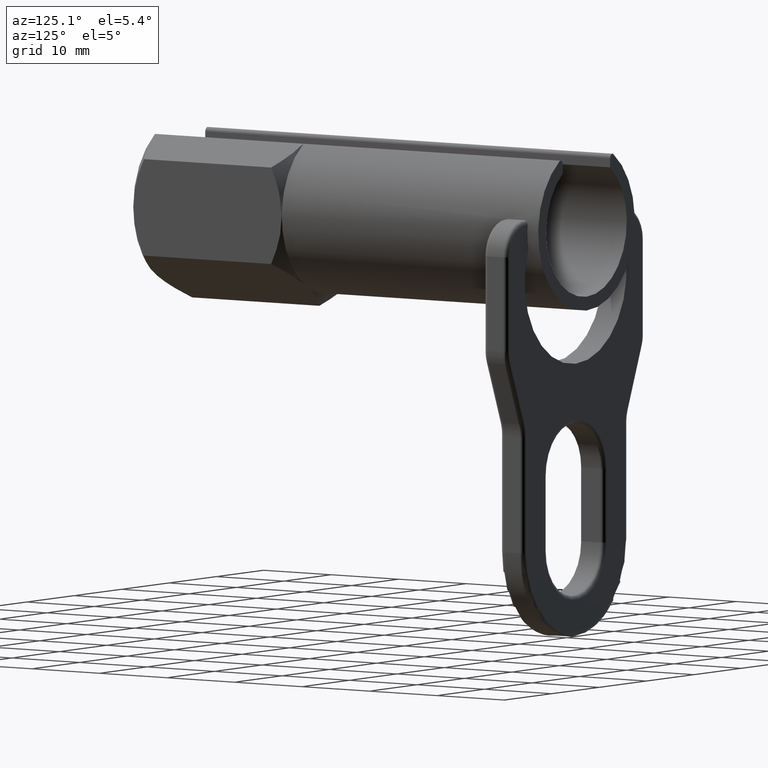
[diagram: clean part render]
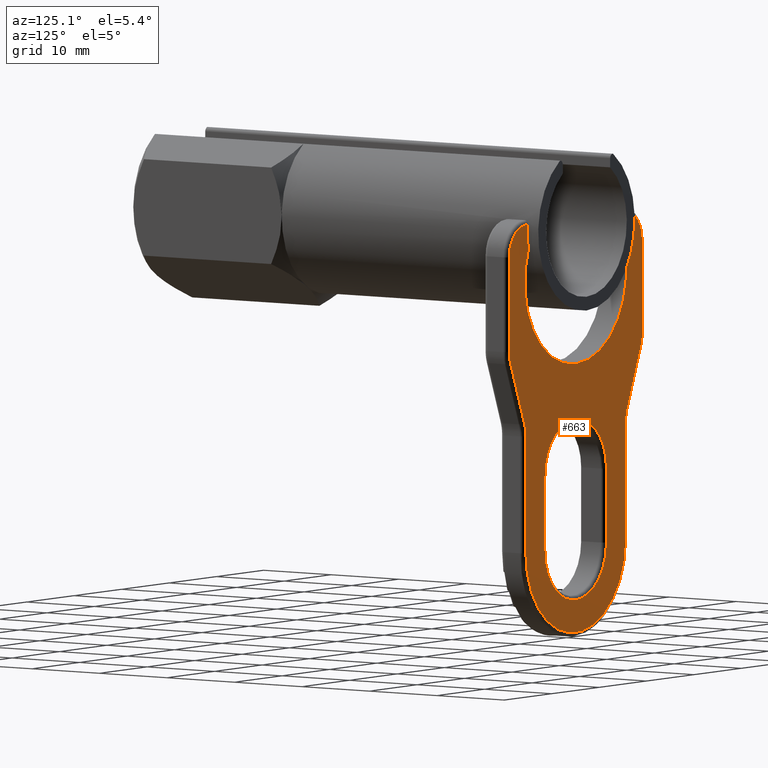
[diagram: same view with one face highlighted and labeled with its STEP entity id]
A machine part, auxiliary view. The second image highlights one B-rep face of the part: STEP entity #663.
In plain terms, the highlighted planar face has unit normal (0, 1, 0).
Its self-contained STEP definition (entity closure, byte-faithful):
#549 = EDGE_CURVE ( 'NONE', #550, #553, #1815, .T. ) ;
#550 = VERTEX_POINT ( 'NONE', #1810 ) ;
#553 = VERTEX_POINT ( 'NONE', #1804 ) ;
#561 = EDGE_CURVE ( 'NONE', #562, #563, #1844, .T. ) ;
#562 = VERTEX_POINT ( 'NONE', #1839 ) ;
#563 = VERTEX_POINT ( 'NONE', #1838 ) ;
#568 = VERTEX_POINT ( 'NONE', #1835 ) ;
#570 = EDGE_CURVE ( 'NONE', #577, #568, #1892, .T. ) ;
#577 = VERTEX_POINT ( 'NONE', #1878 ) ;
#620 = VERTEX_POINT ( 'NONE', #1968 ) ;
#624 = EDGE_CURVE ( 'NONE', #620, #627, #1960, .T. ) ;
#627 = VERTEX_POINT ( 'NONE', #2014 ) ;
#663 = ADVANCED_FACE ( 'NONE', ( #2048, #2047 ), #2110, .T. ) ;
#664 = ORIENTED_EDGE ( 'NONE', *, *, #665, .T. ) ;
#665 = EDGE_CURVE ( 'NONE', #666, #667, #2105, .T. ) ;
#666 = VERTEX_POINT ( 'NONE', #2100 ) ;
#667 = VERTEX_POINT ( 'NONE', #2099 ) ;
#668 = ORIENTED_EDGE ( 'NONE', *, *, #669, .T. ) ;
#669 = EDGE_CURVE ( 'NONE', #667, #670, #2098, .T. ) ;
#670 = VERTEX_POINT ( 'NONE', #2094 ) ;
#671 = ORIENTED_EDGE ( 'NONE', *, *, #672, .T. ) ;
#672 = EDGE_CURVE ( 'NONE', #670, #562, #2093, .T. ) ;
#673 = ORIENTED_EDGE ( 'NONE', *, *, #561, .T. ) ;
#674 = ORIENTED_EDGE ( 'NONE', *, *, #675, .T. ) ;
#675 = EDGE_CURVE ( 'NONE', #563, #666, #2088, .T. ) ;
#676 = EDGE_LOOP ( 'NONE', ( #717, #720, #779, #782, #793, #705, #708, #711, #714, #785, #788, #791, #772, #775, #777, #778, #732, #733 ) ) ;
#703 = EDGE_CURVE ( 'NONE', #792, #704, #2164, .T. ) ;
#704 = VERTEX_POINT ( 'NONE', #2159 ) ;
#705 = ORIENTED_EDGE ( 'NONE', *, *, #706, .T. ) ;
#706 = EDGE_CURVE ( 'NONE', #704, #707, #2158, .T. ) ;
#707 = VERTEX_POINT ( 'NONE', #2154 ) ;
#708 = ORIENTED_EDGE ( 'NONE', *, *, #709, .T. ) ;
#709 = EDGE_CURVE ( 'NONE', #707, #710, #2153, .T. ) ;
#710 = VERTEX_POINT ( 'NONE', #2148 ) ;
#711 = ORIENTED_EDGE ( 'NONE', *, *, #712, .T. ) ;
#712 = EDGE_CURVE ( 'NONE', #710, #713, #2147, .T. ) ;
#713 = VERTEX_POINT ( 'NONE', #2143 ) ;
#714 = ORIENTED_EDGE ( 'NONE', *, *, #715, .T. ) ;
#715 = EDGE_CURVE ( 'NONE', #713, #784, #2202, .T. ) ;
#717 = ORIENTED_EDGE ( 'NONE', *, *, #718, .T. ) ;
#718 = EDGE_CURVE ( 'NONE', #719, #577, #2197, .T. ) ;
#719 = VERTEX_POINT ( 'NONE', #2193 ) ;
#720 = ORIENTED_EDGE ( 'NONE', *, *, #570, .T. ) ;
#726 = EDGE_LOOP ( 'NONE', ( #664, #668, #671, #673, #674 ) ) ;
#731 = EDGE_CURVE ( 'NONE', #553, #620, #2233, .T. ) ;
#732 = ORIENTED_EDGE ( 'NONE', *, *, #624, .T. ) ;
#733 = ORIENTED_EDGE ( 'NONE', *, *, #734, .T. ) ;
#734 = EDGE_CURVE ( 'NONE', #627, #719, #2229, .T. ) ;
#770 = EDGE_CURVE ( 'NONE', #790, #771, #2286, .T. ) ;
#771 = VERTEX_POINT ( 'NONE', #2282 ) ;
#772 = ORIENTED_EDGE ( 'NONE', *, *, #773, .T. ) ;
#773 = EDGE_CURVE ( 'NONE', #771, #774, #2281, .T. ) ;
#774 = VERTEX_POINT ( 'NONE', #2276 ) ;
#775 = ORIENTED_EDGE ( 'NONE', *, *, #776, .T. ) ;
#776 = EDGE_CURVE ( 'NONE', #774, #550, #2275, .T. ) ;
#777 = ORIENTED_EDGE ( 'NONE', *, *, #549, .T. ) ;
#778 = ORIENTED_EDGE ( 'NONE', *, *, #731, .T. ) ;
#779 = ORIENTED_EDGE ( 'NONE', *, *, #780, .T. ) ;
#780 = EDGE_CURVE ( 'NONE', #568, #781, #2271, .T. ) ;
#781 = VERTEX_POINT ( 'NONE', #2323 ) ;
#782 = ORIENTED_EDGE ( 'NONE', *, *, #783, .T. ) ;
#783 = EDGE_CURVE ( 'NONE', #781, #792, #2322, .T. ) ;
#784 = VERTEX_POINT ( 'NONE', #2318 ) ;
#785 = ORIENTED_EDGE ( 'NONE', *, *, #786, .T. ) ;
#786 = EDGE_CURVE ( 'NONE', #784, #787, #2317, .T. ) ;
#787 = VERTEX_POINT ( 'NONE', #2313 ) ;
#788 = ORIENTED_EDGE ( 'NONE', *, *, #789, .T. ) ;
#789 = EDGE_CURVE ( 'NONE', #787, #790, #2312, .T. ) ;
#790 = VERTEX_POINT ( 'NONE', #2307 ) ;
#791 = ORIENTED_EDGE ( 'NONE', *, *, #770, .T. ) ;
#792 = VERTEX_POINT ( 'NONE', #2306 ) ;
#793 = ORIENTED_EDGE ( 'NONE', *, *, #703, .T. ) ;
#1804 = CARTESIAN_POINT ( 'NONE',  ( -10.30000000000000100, 58.39999999999999900, 1.006605712450532300 ) ) ;
#1810 = CARTESIAN_POINT ( 'NONE',  ( -13.99999999999999800, 58.39999999999999900, -2.693394287549467400 ) ) ;
#1811 = DIRECTION ( 'NONE',  ( 0.0000000000000000000, 0.0000000000000000000, 1.000000000000000000 ) ) ;
#1812 = DIRECTION ( 'NONE',  ( 0.0000000000000000000, 1.000000000000000000, 0.0000000000000000000 ) ) ;
#1813 = CARTESIAN_POINT ( 'NONE',  ( -10.30000000000000100, 58.39999999999999900, -2.693394287549467000 ) ) ;
#1814 = AXIS2_PLACEMENT_3D ( 'NONE', #1813, #1812, #1811 ) ;
#1815 = CIRCLE ( 'NONE', #1814, 3.699999999999998800 ) ;
#1835 = CARTESIAN_POINT ( 'NONE',  ( 10.30000000000000100, 58.39999999999999900, 1.006605712450532300 ) ) ;
#1838 = CARTESIAN_POINT ( 'NONE',  ( -6.500000000000000900, 58.39999999999999900, -30.00000000000000000 ) ) ;
#1839 = CARTESIAN_POINT ( 'NONE',  ( 0.0000000000000000000, 58.39999999999999900, -23.50000000000000000 ) ) ;
#1840 = DIRECTION ( 'NONE',  ( 0.0000000000000000000, 0.0000000000000000000, 1.000000000000000000 ) ) ;
#1841 = DIRECTION ( 'NONE',  ( 0.0000000000000000000, -1.000000000000000000, 0.0000000000000000000 ) ) ;
#1842 = CARTESIAN_POINT ( 'NONE',  ( 0.0000000000000000000, 58.39999999999999900, -30.00000000000000000 ) ) ;
#1843 = AXIS2_PLACEMENT_3D ( 'NONE', #1842, #1841, #1840 ) ;
#1844 = CIRCLE ( 'NONE', #1843, 6.499999999999999100 ) ;
#1878 = CARTESIAN_POINT ( 'NONE',  ( 10.12619331775138100, 58.39999999999999900, 1.002521192707856300 ) ) ;
#1888 = DIRECTION ( 'NONE',  ( 0.0000000000000000000, 0.0000000000000000000, 1.000000000000000000 ) ) ;
#1889 = DIRECTION ( 'NONE',  ( 0.0000000000000000000, 1.000000000000000000, 0.0000000000000000000 ) ) ;
#1890 = CARTESIAN_POINT ( 'NONE',  ( 10.30000000000000100, 58.39999999999999900, -2.693394287549467000 ) ) ;
#1891 = AXIS2_PLACEMENT_3D ( 'NONE', #1890, #1889, #1888 ) ;
#1892 = CIRCLE ( 'NONE', #1891, 3.699999999999998800 ) ;
#1957 = DIRECTION ( 'NONE',  ( 0.0000000000000000000, -1.000000000000000000, 0.0000000000000000000 ) ) ;
#1958 = CARTESIAN_POINT ( 'NONE',  ( 0.0000000000000000000, 58.39999999999999900, 0.0000000000000000000 ) ) ;
#1959 = AXIS2_PLACEMENT_3D ( 'NONE', #1958, #1957, #2016 ) ;
#1960 = CIRCLE ( 'NONE', #1959, 10.17569849446715400 ) ;
#1968 = CARTESIAN_POINT ( 'NONE',  ( -10.12619331775138100, 58.39999999999999900, 1.002521192707856300 ) ) ;
#2014 = CARTESIAN_POINT ( 'NONE',  ( -9.977216037066705600, 58.39999999999999900, -2.000000000000005300 ) ) ;
#2016 = DIRECTION ( 'NONE',  ( 0.0000000000000000000, 0.0000000000000000000, 1.000000000000000000 ) ) ;
#2047 = FACE_OUTER_BOUND ( 'NONE', #676, .T. ) ;
#2048 = FACE_BOUND ( 'NONE', #726, .T. ) ;
#2085 = DIRECTION ( 'NONE',  ( 0.0000000000000000000, 0.0000000000000000000, -1.000000000000000000 ) ) ;
#2086 = VECTOR ( 'NONE', #2085, 1000.000000000000000 ) ;
#2087 = CARTESIAN_POINT ( 'NONE',  ( -6.500000000000000900, 58.39999999999999900, -2.693394287549467000 ) ) ;
#2088 = LINE ( 'NONE', #2087, #2086 ) ;
#2089 = DIRECTION ( 'NONE',  ( 0.0000000000000000000, 0.0000000000000000000, 1.000000000000000000 ) ) ;
#2090 = DIRECTION ( 'NONE',  ( 0.0000000000000000000, -1.000000000000000000, 0.0000000000000000000 ) ) ;
#2091 = CARTESIAN_POINT ( 'NONE',  ( 0.0000000000000000000, 58.39999999999999900, -30.00000000000000000 ) ) ;
#2092 = AXIS2_PLACEMENT_3D ( 'NONE', #2091, #2090, #2089 ) ;
#2093 = CIRCLE ( 'NONE', #2092, 6.499999999999999100 ) ;
#2094 = CARTESIAN_POINT ( 'NONE',  ( 6.500000000000000900, 58.39999999999999900, -30.00000000000000000 ) ) ;
#2095 = DIRECTION ( 'NONE',  ( 0.0000000000000000000, 0.0000000000000000000, 1.000000000000000000 ) ) ;
#2096 = VECTOR ( 'NONE', #2095, 1000.000000000000000 ) ;
#2097 = CARTESIAN_POINT ( 'NONE',  ( 6.500000000000002700, 58.39999999999999900, -2.693394287549467000 ) ) ;
#2098 = LINE ( 'NONE', #2097, #2096 ) ;
#2099 = CARTESIAN_POINT ( 'NONE',  ( 6.500000000000000900, 58.39999999999999900, -39.00000000000000000 ) ) ;
#2100 = CARTESIAN_POINT ( 'NONE',  ( -6.500000000000000900, 58.39999999999999900, -39.00000000000000000 ) ) ;
#2101 = DIRECTION ( 'NONE',  ( 0.0000000000000000000, 0.0000000000000000000, 1.000000000000000000 ) ) ;
#2102 = DIRECTION ( 'NONE',  ( 0.0000000000000000000, -1.000000000000000000, 0.0000000000000000000 ) ) ;
#2103 = CARTESIAN_POINT ( 'NONE',  ( 0.0000000000000000000, 58.39999999999999900, -39.00000000000000000 ) ) ;
#2104 = AXIS2_PLACEMENT_3D ( 'NONE', #2103, #2102, #2101 ) ;
#2105 = CIRCLE ( 'NONE', #2104, 6.499999999999999100 ) ;
#2106 = DIRECTION ( 'NONE',  ( 0.0000000000000000000, 0.0000000000000000000, 1.000000000000000000 ) ) ;
#2107 = DIRECTION ( 'NONE',  ( 0.0000000000000000000, 1.000000000000000000, 0.0000000000000000000 ) ) ;
#2108 = CARTESIAN_POINT ( 'NONE',  ( -10.30000000000000100, 58.39999999999999900, -2.693394287549467000 ) ) ;
#2109 = AXIS2_PLACEMENT_3D ( 'NONE', #2108, #2107, #2106 ) ;
#2110 = PLANE ( 'NONE',  #2109 ) ;
#2143 = CARTESIAN_POINT ( 'NONE',  ( 10.49999999999999800, 58.39999999999999900, -39.00000000000000000 ) ) ;
#2144 = DIRECTION ( 'NONE',  ( 0.0000000000000000000, 0.0000000000000000000, -1.000000000000000000 ) ) ;
#2145 = VECTOR ( 'NONE', #2144, 1000.000000000000000 ) ;
#2146 = CARTESIAN_POINT ( 'NONE',  ( 10.49999999999999800, 58.39999999999999900, -39.00000000000000000 ) ) ;
#2147 = LINE ( 'NONE', #2146, #2145 ) ;
#2148 = CARTESIAN_POINT ( 'NONE',  ( 10.49999999999999800, 58.39999999999999900, -24.78792474949678500 ) ) ;
#2149 = DIRECTION ( 'NONE',  ( 2.583630708901627900E-015, 0.0000000000000000000, 1.000000000000000000 ) ) ;
#2150 = DIRECTION ( 'NONE',  ( 0.0000000000000000000, -1.000000000000000000, 0.0000000000000000000 ) ) ;
#2151 = CARTESIAN_POINT ( 'NONE',  ( 15.19999999999999900, 58.39999999999999900, -24.78792474949678500 ) ) ;
#2152 = AXIS2_PLACEMENT_3D ( 'NONE', #2151, #2150, #2149 ) ;
#2153 = CIRCLE ( 'NONE', #2152, 4.699999999999999300 ) ;
#2154 = CARTESIAN_POINT ( 'NONE',  ( 10.81957804375590700, 58.39999999999999900, -23.08442732206852500 ) ) ;
#2155 = DIRECTION ( 'NONE',  ( -0.3624462611549482700, 0.0000000000000000000, -0.9320046715412959600 ) ) ;
#2156 = VECTOR ( 'NONE', #2155, 1000.000000000000100 ) ;
#2157 = CARTESIAN_POINT ( 'NONE',  ( 10.81957804375590500, 58.39999999999999900, -23.08442732206852800 ) ) ;
#2158 = LINE ( 'NONE', #2157, #2156 ) ;
#2159 = CARTESIAN_POINT ( 'NONE',  ( 13.74841728470278900, 58.39999999999999900, -15.55312641677653800 ) ) ;
#2160 = DIRECTION ( 'NONE',  ( 0.0000000000000000000, 0.0000000000000000000, 1.000000000000000000 ) ) ;
#2161 = DIRECTION ( 'NONE',  ( 0.0000000000000000000, 1.000000000000000000, 0.0000000000000000000 ) ) ;
#2162 = CARTESIAN_POINT ( 'NONE',  ( 10.29999999999999900, 58.39999999999999900, -14.21207525050322800 ) ) ;
#2163 = AXIS2_PLACEMENT_3D ( 'NONE', #2162, #2161, #2160 ) ;
#2164 = CIRCLE ( 'NONE', #2163, 3.699999999999998400 ) ;
#2177 = CARTESIAN_POINT ( 'NONE',  ( -10.30000000000000100, 58.39999999999999900, -2.693394287549467000 ) ) ;
#2193 = CARTESIAN_POINT ( 'NONE',  ( 9.977216037066707300, 58.39999999999999900, -1.999999999999999100 ) ) ;
#2194 = DIRECTION ( 'NONE',  ( 0.0000000000000000000, 0.0000000000000000000, 1.000000000000000000 ) ) ;
#2195 = DIRECTION ( 'NONE',  ( 0.0000000000000000000, -1.000000000000000000, 0.0000000000000000000 ) ) ;
#2196 = AXIS2_PLACEMENT_3D ( 'NONE', #2203, #2195, #2194 ) ;
#2197 = CIRCLE ( 'NONE', #2196, 10.17569849446715400 ) ;
#2198 = DIRECTION ( 'NONE',  ( 0.0000000000000000000, 0.0000000000000000000, 1.000000000000000000 ) ) ;
#2199 = DIRECTION ( 'NONE',  ( 0.0000000000000000000, 1.000000000000000000, 0.0000000000000000000 ) ) ;
#2200 = CARTESIAN_POINT ( 'NONE',  ( 0.0000000000000000000, 58.39999999999999900, -39.00000000000000000 ) ) ;
#2201 = AXIS2_PLACEMENT_3D ( 'NONE', #2200, #2199, #2198 ) ;
#2202 = CIRCLE ( 'NONE', #2201, 10.49999999999999800 ) ;
#2203 = CARTESIAN_POINT ( 'NONE',  ( 0.0000000000000000000, 58.39999999999999900, 0.0000000000000000000 ) ) ;
#2225 = DIRECTION ( 'NONE',  ( 0.0000000000000000000, 0.0000000000000000000, 1.000000000000000000 ) ) ;
#2226 = DIRECTION ( 'NONE',  ( 0.0000000000000000000, -1.000000000000000000, 0.0000000000000000000 ) ) ;
#2227 = CARTESIAN_POINT ( 'NONE',  ( 0.0000000000000000000, 58.39999999999999900, -6.000000000000000000 ) ) ;
#2228 = AXIS2_PLACEMENT_3D ( 'NONE', #2227, #2226, #2225 ) ;
#2229 = CIRCLE ( 'NONE', #2228, 10.74917856630454900 ) ;
#2230 = DIRECTION ( 'NONE',  ( 0.0000000000000000000, 0.0000000000000000000, 1.000000000000000000 ) ) ;
#2231 = DIRECTION ( 'NONE',  ( 0.0000000000000000000, 1.000000000000000000, 0.0000000000000000000 ) ) ;
#2232 = AXIS2_PLACEMENT_3D ( 'NONE', #2177, #2231, #2230 ) ;
#2233 = CIRCLE ( 'NONE', #2232, 3.699999999999998800 ) ;
#2267 = DIRECTION ( 'NONE',  ( 0.0000000000000000000, 0.0000000000000000000, 1.000000000000000000 ) ) ;
#2268 = DIRECTION ( 'NONE',  ( 0.0000000000000000000, 1.000000000000000000, 0.0000000000000000000 ) ) ;
#2269 = CARTESIAN_POINT ( 'NONE',  ( 10.30000000000000100, 58.39999999999999900, -2.693394287549467000 ) ) ;
#2270 = AXIS2_PLACEMENT_3D ( 'NONE', #2269, #2268, #2267 ) ;
#2271 = CIRCLE ( 'NONE', #2270, 3.699999999999998800 ) ;
#2272 = DIRECTION ( 'NONE',  ( -1.506008788294426700E-016, 0.0000000000000000000, 1.000000000000000000 ) ) ;
#2273 = VECTOR ( 'NONE', #2272, 1000.000000000000000 ) ;
#2274 = CARTESIAN_POINT ( 'NONE',  ( -13.99999999999999800, 58.39999999999999900, -2.693394287549467400 ) ) ;
#2275 = LINE ( 'NONE', #2274, #2273 ) ;
#2276 = CARTESIAN_POINT ( 'NONE',  ( -13.99999999999999600, 58.39999999999999900, -14.21207525050322800 ) ) ;
#2277 = DIRECTION ( 'NONE',  ( 0.0000000000000000000, 0.0000000000000000000, 1.000000000000000000 ) ) ;
#2278 = DIRECTION ( 'NONE',  ( 0.0000000000000000000, 1.000000000000000000, 0.0000000000000000000 ) ) ;
#2279 = CARTESIAN_POINT ( 'NONE',  ( -10.29999999999999900, 58.39999999999999900, -14.21207525050322800 ) ) ;
#2280 = AXIS2_PLACEMENT_3D ( 'NONE', #2279, #2278, #2277 ) ;
#2281 = CIRCLE ( 'NONE', #2280, 3.699999999999998400 ) ;
#2282 = CARTESIAN_POINT ( 'NONE',  ( -13.74841728470279100, 58.39999999999999900, -15.55312641677653800 ) ) ;
#2283 = DIRECTION ( 'NONE',  ( -0.3624462611549482700, 0.0000000000000000000, 0.9320046715412959600 ) ) ;
#2284 = VECTOR ( 'NONE', #2283, 1000.000000000000100 ) ;
#2285 = CARTESIAN_POINT ( 'NONE',  ( -13.74841728470279100, 58.39999999999999900, -15.55312641677653900 ) ) ;
#2286 = LINE ( 'NONE', #2285, #2284 ) ;
#2306 = CARTESIAN_POINT ( 'NONE',  ( 13.99999999999999600, 58.39999999999999900, -14.21207525050322800 ) ) ;
#2307 = CARTESIAN_POINT ( 'NONE',  ( -10.81957804375590900, 58.39999999999999900, -23.08442732206852500 ) ) ;
#2308 = DIRECTION ( 'NONE',  ( 2.583630708901627900E-015, 0.0000000000000000000, 1.000000000000000000 ) ) ;
#2309 = DIRECTION ( 'NONE',  ( 0.0000000000000000000, -1.000000000000000000, 0.0000000000000000000 ) ) ;
#2310 = CARTESIAN_POINT ( 'NONE',  ( -15.19999999999999900, 58.39999999999999900, -24.78792474949678500 ) ) ;
#2311 = AXIS2_PLACEMENT_3D ( 'NONE', #2310, #2309, #2308 ) ;
#2312 = CIRCLE ( 'NONE', #2311, 4.699999999999999300 ) ;
#2313 = CARTESIAN_POINT ( 'NONE',  ( -10.49999999999999800, 58.39999999999999900, -24.78792474949678500 ) ) ;
#2314 = DIRECTION ( 'NONE',  ( 0.0000000000000000000, 0.0000000000000000000, 1.000000000000000000 ) ) ;
#2315 = VECTOR ( 'NONE', #2314, 1000.000000000000000 ) ;
#2316 = CARTESIAN_POINT ( 'NONE',  ( -10.49999999999999800, 58.39999999999999900, -24.78792474949678100 ) ) ;
#2317 = LINE ( 'NONE', #2316, #2315 ) ;
#2318 = CARTESIAN_POINT ( 'NONE',  ( -10.49999999999999800, 58.39999999999999900, -39.00000000000000000 ) ) ;
#2319 = DIRECTION ( 'NONE',  ( -1.506008788294426700E-016, 0.0000000000000000000, -1.000000000000000000 ) ) ;
#2320 = VECTOR ( 'NONE', #2319, 1000.000000000000000 ) ;
#2321 = CARTESIAN_POINT ( 'NONE',  ( 13.99999999999999600, 58.39999999999999900, -14.21207525050322800 ) ) ;
#2322 = LINE ( 'NONE', #2321, #2320 ) ;
#2323 = CARTESIAN_POINT ( 'NONE',  ( 13.99999999999999800, 58.39999999999999900, -2.693394287549467400 ) ) ;